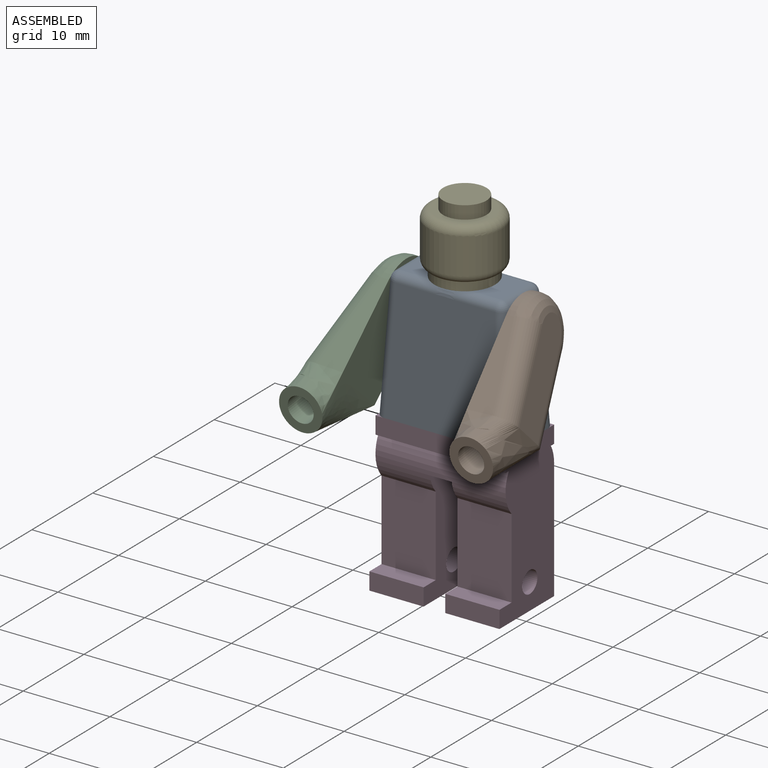
[diagram: assembled view]
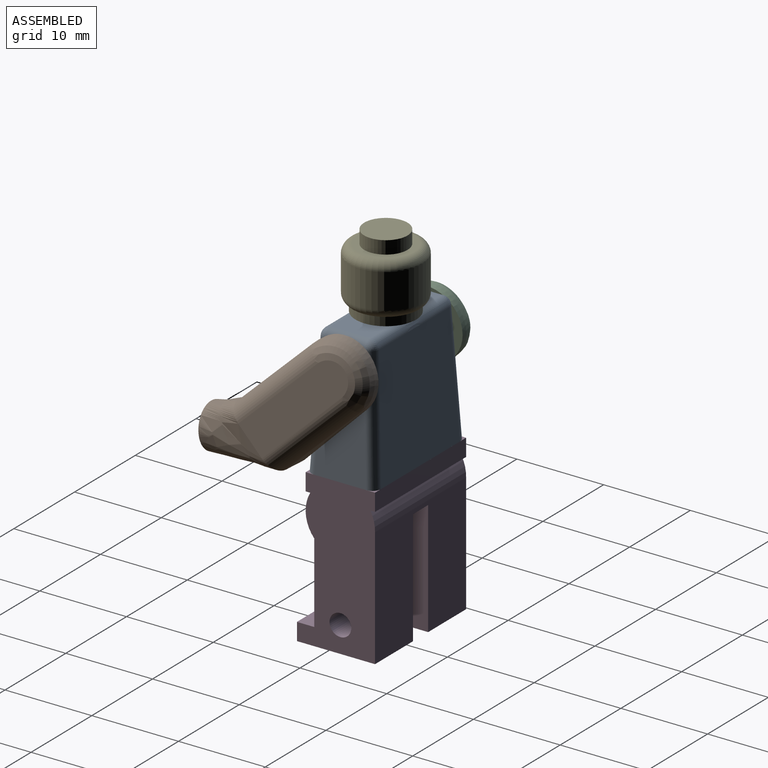
[diagram: assembled view, second angle]
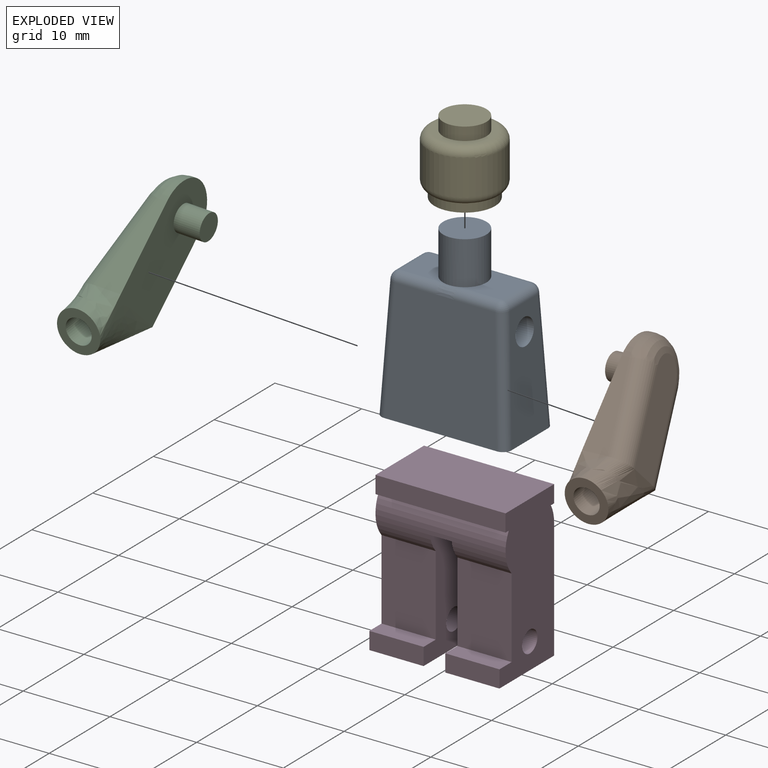
[diagram: exploded view]
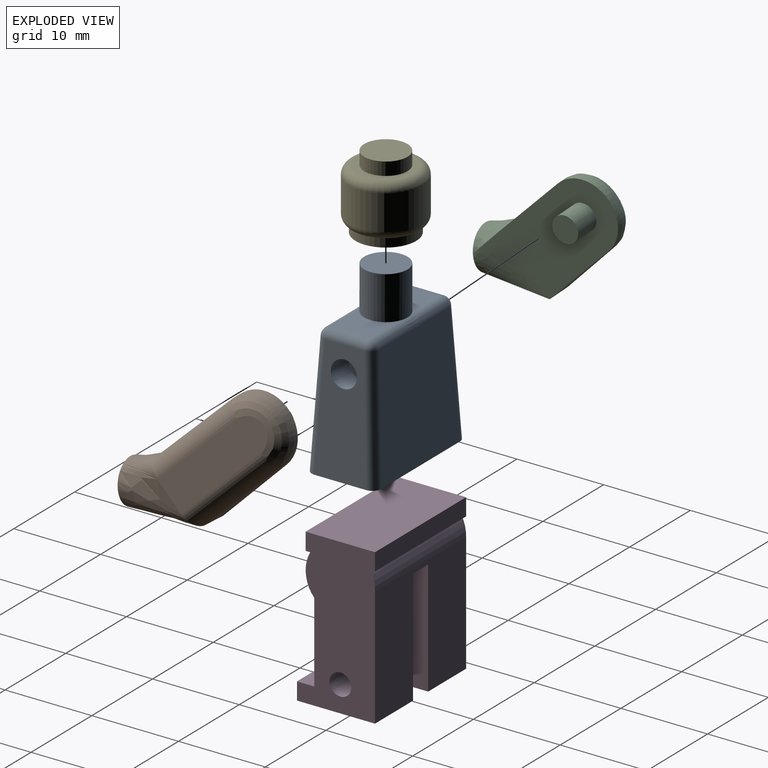
[diagram: exploded view, second angle]
ASSEMBLY  parts=5 mates=4
PART A: 29 faces, bbox 15x8x20 mm
  f0: plane 4.71x4.53mm, normal (0,0,1), area 16.6mm2, adj f7,f11,f12,f18
  f1: plane 14.05x6mm, normal (1,0,0.05), area 67mm2, adj f6,f16,f21,f24,f27
  f2: plane 14.08x13mm, normal (0,1,0.05), area 172.6mm2, adj f6,f13,f18,f20,f22,f24
  f3: plane 14.05x6mm, normal (-1,0,0.05), area 67mm2, adj f6,f9,f12,f13,f25
  f4: plane 14.08x13mm, normal (0,-1,0.05), area 172.6mm2, adj f6,f9,f11,f14,f16,f17
  f5: plane 4.71x4.53mm, normal (0,0,1), area 16.6mm2, adj f7,f17,f21,f22
  f6: plane 15.04x8.04mm, normal (0,0,-1), area 119.1mm2, adj f1,f2,f3,f4,f9,f13,f16,f24
  f7: cylinder r=2.5mm len=5mm, axis (0,0,-1), area 78.5mm2, adj f0,f5,f8,f14,f20
  f8: plane 5x5mm, normal (0,0,1), area 19.6mm2, adj f7
  f9: cylinder r=1mm len=14.07mm, axis (-0.05,-0.05,-1), area 22.1mm2, adj f3,f4,f6,f10
  f10: sphere r=1mm, area 1.5mm2, adj f9,f11,f12
  f11: cylinder r=1mm len=4.71mm, axis (-1,0,0), area 7.1mm2, adj f0,f4,f10,f14
  f12: cylinder r=1mm len=4.53mm, axis (0,1,0), area 6.9mm2, adj f0,f3,f10,f15
  f13: cylinder r=1mm len=14.07mm, axis (-0.05,0.05,-1), area 22.1mm2, adj f2,f3,f6,f15
  f14: bspline ~2.12x1mm, area 2.9mm2, adj f4,f7,f11,f17
  f15: sphere r=1mm, area 1.5mm2, adj f12,f13,f18
  f16: cylinder r=1mm len=14.07mm, axis (0.05,-0.05,-1), area 22.1mm2, adj f1,f4,f6,f19
  f17: cylinder r=1mm len=4.71mm, axis (-1,0,0), area 7.1mm2, adj f4,f5,f14,f19
  f18: cylinder r=1mm len=4.71mm, axis (-1,0,0), area 7.1mm2, adj f0,f2,f15,f20
  f19: sphere r=1mm, area 1.5mm2, adj f16,f17,f21
  f20: bspline ~2.12x1mm, area 2.9mm2, adj f2,f7,f18,f22
  f21: cylinder r=1mm len=4.53mm, axis (0,1,0), area 6.9mm2, adj f1,f5,f19,f23
  f22: cylinder r=1mm len=4.71mm, axis (-1,0,0), area 7.1mm2, adj f2,f5,f20,f23
  f23: sphere r=1mm, area 1.5mm2, adj f21,f22,f24
  f24: cylinder r=1mm len=14.07mm, axis (0.05,0.05,-1), area 22.1mm2, adj f1,f2,f6,f23
  f25: cylinder r=1.5mm len=3.15mm, axis (-1,0,0.05), area 28.3mm2, adj f3,f26
  f26: plane 3x3mm, normal (-1,0,0.05), area 7.1mm2, adj f25
  f27: cylinder r=1.5mm len=3.15mm, axis (1,0,0.05), area 28.3mm2, adj f1,f28
  f28: plane 3x3mm, normal (1,0,0.05), area 7.1mm2, adj f27
PART B: 15 faces, bbox 8.1x9.7x20.3 mm
  f0: plane 10.02x2.98mm, normal (0,1,0), area 19.4mm2, adj f1,f5,f9,f11
  f1: cylinder r=4mm len=8mm, axis (-1,0,0), area 11.6mm2, adj f0,f4,f5,f8
  f2: cylinder r=1.5mm len=3mm, axis (-1,0,0), area 28.3mm2, adj f3,f5
  f3: plane 3x3mm, normal (-1,0,0), area 7.1mm2, adj f2
  f4: plane 10.02x2.98mm, normal (0,-1,0), area 19.4mm2, adj f1,f5,f7,f11
  f5: plane 14x8mm, normal (-1,0,0), area 98.1mm2, adj f0,f1,f2,f4,f12
  f6: plane 12.44x4.04mm, normal (0.98,0,0.2), area 48.9mm2, adj f7,f8,f9,f11
  f7: cylinder r=2mm len=10.8mm, axis (0.2,0,-0.98), area 32.7mm2, adj f4,f6,f8,f11
  f8: bspline ~8x4mm, area 29.3mm2, adj f1,f6,f7,f9
  f9: cylinder r=2mm len=10.8mm, axis (0.2,0,-0.98), area 32.7mm2, adj f0,f6,f8,f11
  f10: plane 5.07x4.01mm, normal (0,-0.62,-0.79), area 12.6mm2, adj f11,f12,f13
  f11: bspline ~9.64x6.24mm, area 80.1mm2, adj f0,f4,f6,f7,f9,f10,f12
  f12: bspline ~8x5.9mm, area 28.4mm2, adj f5,f10,f11
  f13: cylinder r=1.5mm len=5.79mm, axis (0,-0.62,-0.79), area 47.1mm2, adj f10,f14
  f14: plane 3x2.36mm, normal (0,-0.62,-0.79), area 7.1mm2, adj f13
PART C: 15 faces, bbox 8.1x9.7x20.3 mm
  f0: plane 10.02x2.98mm, normal (0,1,0), area 19.4mm2, adj f1,f5,f9,f11
  f1: cylinder r=4mm len=8mm, axis (1,0,0), area 11.6mm2, adj f0,f4,f5,f8
  f2: cylinder r=1.5mm len=3mm, axis (1,0,0), area 28.3mm2, adj f3,f5
  f3: plane 3x3mm, normal (1,0,0), area 7.1mm2, adj f2
  f4: plane 10.02x2.98mm, normal (0,-1,0), area 19.4mm2, adj f1,f5,f7,f11
  f5: plane 14x8mm, normal (1,0,0), area 98.1mm2, adj f0,f1,f2,f4,f12
  f6: plane 12.44x4.04mm, normal (-0.98,0,0.2), area 48.9mm2, adj f7,f8,f9,f11
  f7: cylinder r=2mm len=10.8mm, axis (-0.2,0,-0.98), area 32.7mm2, adj f4,f6,f8,f11
  f8: bspline ~8x4mm, area 29.3mm2, adj f1,f6,f7,f9
  f9: cylinder r=2mm len=10.8mm, axis (-0.2,0,-0.98), area 32.7mm2, adj f0,f6,f8,f11
  f10: plane 5.07x4.01mm, normal (0,-0.62,-0.79), area 12.6mm2, adj f11,f12,f13
  f11: bspline ~9.64x6.24mm, area 80.1mm2, adj f0,f4,f6,f7,f9,f10,f12
  f12: bspline ~8x5.9mm, area 28.4mm2, adj f5,f10,f11
  f13: cylinder r=1.5mm len=5.79mm, axis (0,-0.62,-0.79), area 47.1mm2, adj f10,f14
  f14: plane 3x2.36mm, normal (0,-0.62,-0.79), area 7.1mm2, adj f13
PART D: 23 faces, bbox 15x9x17.9 mm
  f0: plane 9.23x6.25mm, normal (0,-1,0), area 57.7mm2, adj f1,f11,f19,f22
  f1: plane 6.25x2mm, normal (0,0,1), area 12.5mm2, adj f0,f2,f19,f22
  f2: plane 6.25x2mm, normal (0,-1,0), area 12.5mm2, adj f1,f3,f19,f22
  f3: plane 9x6.25mm, normal (0,0,-1), area 56.2mm2, adj f2,f16,f19,f22
  f4: cylinder r=1.25mm len=6.25mm, axis (-1,0,0), area 49.1mm2, adj f19,f22
  f5: cylinder r=4mm len=15mm, axis (-1,0,0), area 33.4mm2, adj f6,f16,f18,f19
  f6: plane 15x0.54mm, normal (0,0,-1), area 8mm2, adj f5,f7,f18,f19
  f7: plane 15x2mm, normal (0,1,0), area 30mm2, adj f6,f8,f18,f19
  f8: plane 15x8mm, normal (0,0,1), area 120mm2, adj f7,f9,f18,f19
  f9: plane 15x2mm, normal (0,-1,0), area 30mm2, adj f8,f10,f18,f19
  f10: plane 15x0.54mm, normal (0,0,-1), area 8mm2, adj f9,f11,f18,f19
  f11: cylinder r=4mm len=15mm, axis (-1,0,0), area 69mm2, adj f0,f10,f12,f18,f19,f20,f21,f22
  f12: plane 9.23x6.25mm, normal (0,-1,0), area 57.7mm2, adj f11,f13,f18,f21
  f13: plane 6.25x2mm, normal (0,0,1), area 12.5mm2, adj f12,f14,f18,f21
  f14: plane 6.25x2mm, normal (0,-1,0), area 12.5mm2, adj f13,f15,f18,f21
  f15: plane 9x6.25mm, normal (0,0,-1), area 56.2mm2, adj f14,f16,f18,f21
  f16: plane 15x13.74mm, normal (0,1,0), area 173mm2, adj f3,f5,f15,f18,f19,f20,f21,f22
  f17: cylinder r=1.25mm len=6.25mm, axis (-1,0,0), area 49.1mm2, adj f18,f21
  f18: plane 17.87x9mm, normal (1,0,0), area 129.3mm2, adj f5,f6,f7,f8,f9,f10,f11,f12
  f19: plane 17.87x9mm, normal (-1,0,0), area 129.3mm2, adj f0,f1,f2,f3,f4,f5,f6,f7
  f20: cylinder r=11mm len=7.95mm, axis (-1,0,0), area 20.3mm2, adj f11,f16,f21,f22
  f21: plane 14x9mm, normal (-1,0,0), area 97.1mm2, adj f11,f12,f13,f14,f15,f16,f17,f20
  f22: plane 14x9mm, normal (1,0,0), area 97.1mm2, adj f0,f1,f2,f3,f4,f11,f16,f20
PART E: 10 faces, bbox 9.2x9.2x8.5 mm
  f0: cylinder r=3.5mm len=7mm, axis (0,0,-1), area 22mm2, adj f1,f6
  f1: plane 7x7mm, normal (0,0,-1), area 18.8mm2, adj f0,f8
  f2: cylinder r=4.25mm len=8.5mm, axis (0,0,-1), area 107.7mm2, adj f6,f7
  f3: plane 6.5x6.5mm, normal (0,0,1), area 13.5mm2, adj f4,f7
  f4: cylinder r=2.5mm len=5mm, axis (0,0,-1), area 23.6mm2, adj f3,f5
  f5: plane 5x5mm, normal (0,0,1), area 19.6mm2, adj f4
  f6: torus R=3.25mm, axis (0,0,-1), area 33mm2, adj f0,f2
  f7: torus R=3.25mm, axis (0,0,1), area 38.4mm2, adj f2,f3
  f8: cylinder r=2.5mm len=6mm, axis (0,0,-1), area 94.2mm2, adj f1,f9
  f9: plane 5x5mm, normal (0,0,-1), area 19.6mm2, adj f8
PLACE A t=(-0.01,-0.1,-9.24)mm fixed
PLACE B rot(axis=(-1,-0.06,-0.03),45deg) t=(3.91,-0.1,1.66)mm
PLACE C rot(axis=(-1,0.06,0.03),45.1deg) t=(-3.94,-0.1,1.66)mm
PLACE D t=(-0.01,-0.1,-10.24)mm fixed
PLACE E t=(-0.01,-0.1,5.8)mm fixed
MATE fastened D.f8 <-> A.f7  axis (0,0,1) through (-0.01,-0.1,-9.24)mm
MATE revolute C.f1 <-> A.f25  axis (1,0,-0.05) through (-3.94,-0.1,1.66)mm
MATE revolute B.f1 <-> A.f27  axis (-1,0,-0.05) through (3.91,-0.1,1.66)mm
MATE slider E.f0 <-> A.f7  axis (0,0,-1) through (-0.01,-0.1,11.8)mm
